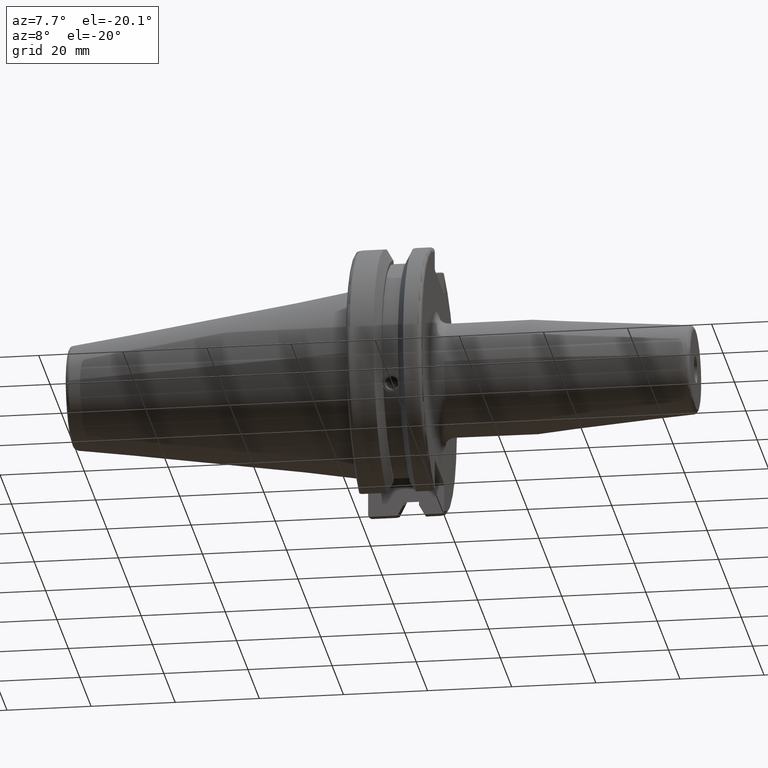
[diagram: clean part render]
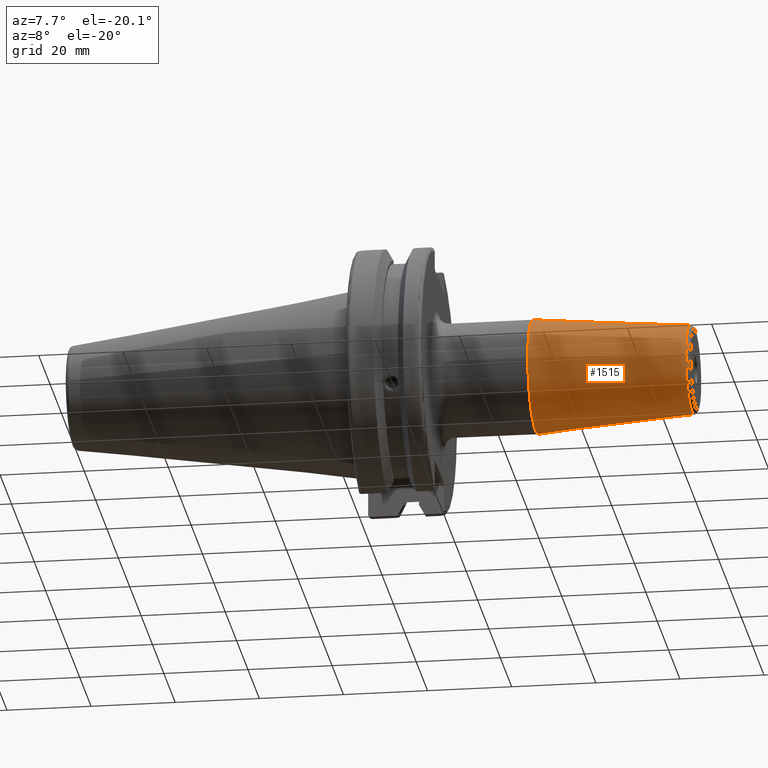
[diagram: same view with one face highlighted and labeled with its STEP entity id]
A machine part, auxiliary view. The second image highlights one B-rep face of the part: STEP entity #1515.
In plain terms, the highlighted conical surface has half-angle 4.5 deg.
Its self-contained STEP definition (entity closure, byte-faithful):
#164=LINE('',#2281,#260);
#260=VECTOR('',#1822,12.);
#356=CONICAL_SURFACE('',#1631,12.,0.0785398163397448);
#371=FACE_OUTER_BOUND('',#460,.T.);
#460=EDGE_LOOP('',(#1037,#1038,#1039,#1040,#1041));
#566=CIRCLE('',#1629,10.5725268420749);
#567=CIRCLE('',#1630,10.5725268420749);
#568=CIRCLE('',#1632,13.5);
#640=VERTEX_POINT('',#2274);
#641=VERTEX_POINT('',#2276);
#642=VERTEX_POINT('',#2280);
#797=EDGE_CURVE('',#640,#641,#566,.T.);
#798=EDGE_CURVE('',#641,#640,#567,.T.);
#799=EDGE_CURVE('',#641,#642,#164,.T.);
#800=EDGE_CURVE('',#642,#642,#568,.T.);
#1037=ORIENTED_EDGE('',*,*,#798,.F.);
#1038=ORIENTED_EDGE('',*,*,#799,.T.);
#1039=ORIENTED_EDGE('',*,*,#800,.T.);
#1040=ORIENTED_EDGE('',*,*,#799,.F.);
#1041=ORIENTED_EDGE('',*,*,#797,.F.);
#1515=ADVANCED_FACE('',(#371),#356,.T.);
#1629=AXIS2_PLACEMENT_3D('',#2277,#1816,#1817);
#1630=AXIS2_PLACEMENT_3D('',#2278,#1818,#1819);
#1631=AXIS2_PLACEMENT_3D('',#2279,#1820,#1821);
#1632=AXIS2_PLACEMENT_3D('',#2282,#1823,#1824);
#1816=DIRECTION('center_axis',(1.,0.,0.));
#1817=DIRECTION('ref_axis',(0.,-1.,3.06161699786838E-17));
#1818=DIRECTION('center_axis',(1.,0.,0.));
#1819=DIRECTION('ref_axis',(0.,-1.,3.06161699786838E-17));
#1820=DIRECTION('center_axis',(-1.,0.,0.));
#1821=DIRECTION('ref_axis',(0.,1.,0.));
#1822=DIRECTION('',(-0.996917333733128,-0.078459095727845,-9.60846804471011E-18));
#1823=DIRECTION('center_axis',(1.,0.,0.));
#1824=DIRECTION('ref_axis',(0.,0.,-1.));
#2274=CARTESIAN_POINT('',(79.0784590957279,-1.29476111560465E-15,10.5725268420749));
#2276=CARTESIAN_POINT('',(79.0784590957279,-10.5725268420749,-1.29476111560465E-15));
#2277=CARTESIAN_POINT('Origin',(79.0784590957279,0.,-1.61845139450582E-15));
#2278=CARTESIAN_POINT('Origin',(79.0784590957279,0.,-1.61845139450582E-15));
#2279=CARTESIAN_POINT('Origin',(60.9406928957379,0.,0.));
#2280=CARTESIAN_POINT('',(41.8813857914759,-13.5,-1.65327317884893E-15));
#2281=CARTESIAN_POINT('',(60.9406928957379,-12.,-1.46957615897682E-15));
#2282=CARTESIAN_POINT('Origin',(41.8813857914759,0.,0.));